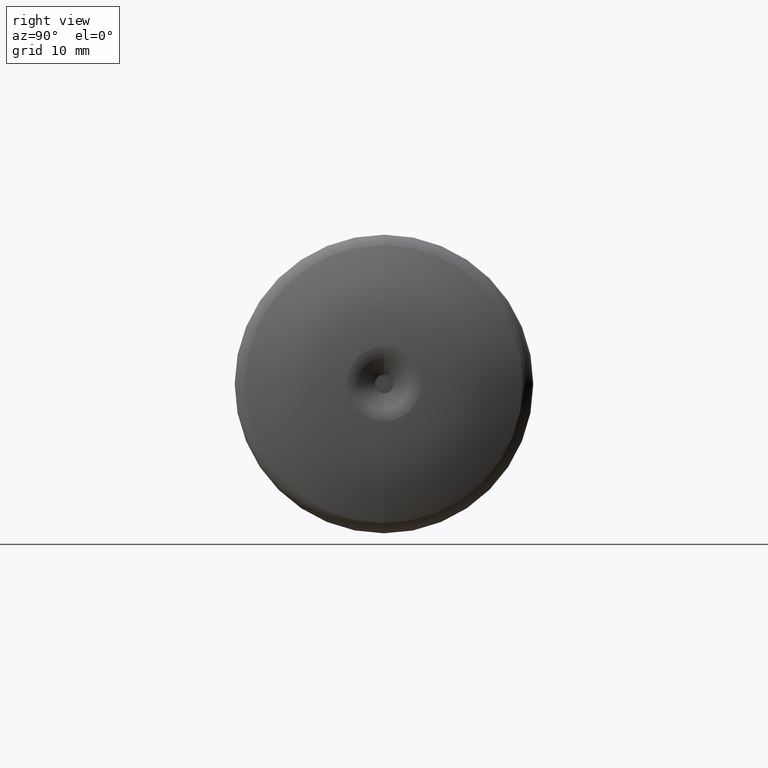
[diagram: clean part render]
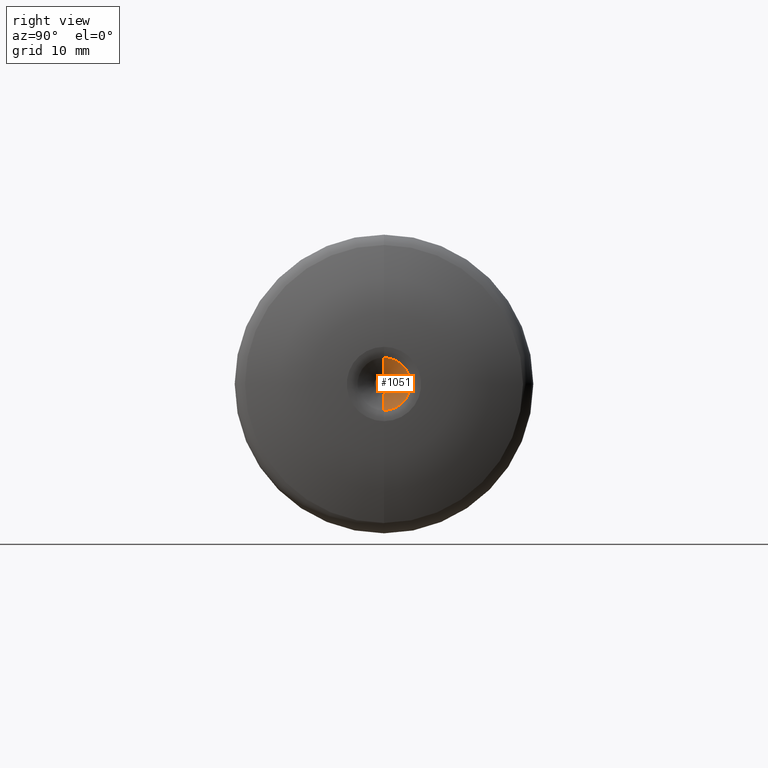
[diagram: same view with one face highlighted and labeled with its STEP entity id]
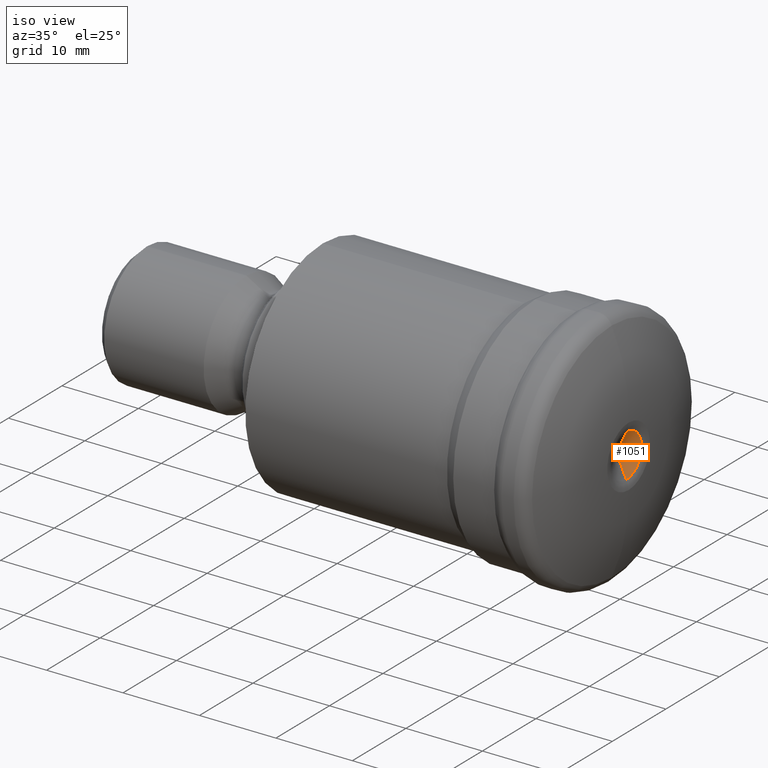
[diagram: same view with one face highlighted and labeled with its STEP entity id]
A machine part, right view. The second image highlights one B-rep face of the part: STEP entity #1051.
A second angle (iso view) of the same face is appended — the face is thin or edge-on in the first view.
In plain terms, the highlighted conical surface has half-angle 65.202 deg.
Its self-contained STEP definition (entity closure, byte-faithful):
#71 = DIRECTION ( 'NONE',  ( 0.0000000000000000000, 0.0000000000000000000, -1.000000000000000000 ) ) ;
#125 = DIRECTION ( 'NONE',  ( 1.000000000000000000, -0.0000000000000000000, -0.0000000000000000000 ) ) ;
#140 = CARTESIAN_POINT ( 'NONE',  ( -7.985904054406477900E-016, 0.0000000000000000000, 0.0000000000000000000 ) ) ;
#307 = VECTOR ( 'NONE', #741, 1000.000000000000000 ) ;
#331 = VECTOR ( 'NONE', #671, 1000.000000000000000 ) ;
#336 = LINE ( 'NONE', #734, #307 ) ;
#342 = LINE ( 'NONE', #927, #331 ) ;
#350 = ORIENTED_EDGE ( 'NONE', *, *, #421, .T. ) ;
#354 = CIRCLE ( 'NONE', #485, 0.9980557212225268400 ) ;
#364 = ORIENTED_EDGE ( 'NONE', *, *, #497, .F. ) ;
#383 = CIRCLE ( 'NONE', #456, 2.826783644686047000 ) ;
#388 = ORIENTED_EDGE ( 'NONE', *, *, #480, .T. ) ;
#392 = ORIENTED_EDGE ( 'NONE', *, *, #408, .F. ) ;
#408 = EDGE_CURVE ( 'NONE', #849, #848, #354, .T. ) ;
#421 = EDGE_CURVE ( 'NONE', #876, #743, #383, .T. ) ;
#456 = AXIS2_PLACEMENT_3D ( 'NONE', #968, #712, #713 ) ;
#480 = EDGE_CURVE ( 'NONE', #849, #876, #336, .T. ) ;
#485 = AXIS2_PLACEMENT_3D ( 'NONE', #692, #686, #685 ) ;
#486 = AXIS2_PLACEMENT_3D ( 'NONE', #140, #125, #71 ) ;
#497 = EDGE_CURVE ( 'NONE', #848, #743, #342, .T. ) ;
#613 = EDGE_LOOP ( 'NONE', ( #364, #392, #388, #350 ) ) ;
#671 = DIRECTION ( 'NONE',  ( 0.4194177533736165300, 1.111726208122785700E-016, 0.9077933400036751800 ) ) ;
#685 = DIRECTION ( 'NONE',  ( 0.0000000000000000000, 0.0000000000000000000, -1.000000000000000000 ) ) ;
#686 = DIRECTION ( 'NONE',  ( 1.000000000000000000, -0.0000000000000000000, -0.0000000000000000000 ) ) ;
#692 = CARTESIAN_POINT ( 'NONE',  ( -7.985904054406477900E-016, 0.0000000000000000000, 0.0000000000000000000 ) ) ;
#712 = DIRECTION ( 'NONE',  ( 1.000000000000000000, -0.0000000000000000000, -0.0000000000000000000 ) ) ;
#713 = DIRECTION ( 'NONE',  ( 0.0000000000000000000, 0.0000000000000000000, -1.000000000000000000 ) ) ;
#734 = CARTESIAN_POINT ( 'NONE',  ( -7.985904054406477900E-016, 0.0000000000000000000, -0.9980557212225268400 ) ) ;
#741 = DIRECTION ( 'NONE',  ( 0.4194177533736165300, 0.0000000000000000000, -0.9077933400036751800 ) ) ;
#743 = VERTEX_POINT ( 'NONE', #992 ) ;
#814 = CARTESIAN_POINT ( 'NONE',  ( 0.8449070106502024600, 0.0000000000000000000, -2.826783644686047000 ) ) ;
#848 = VERTEX_POINT ( 'NONE', #953 ) ;
#849 = VERTEX_POINT ( 'NONE', #901 ) ;
#876 = VERTEX_POINT ( 'NONE', #814 ) ;
#901 = CARTESIAN_POINT ( 'NONE',  ( -7.985904054406477900E-016, 0.0000000000000000000, -0.9980557212225268400 ) ) ;
#927 = CARTESIAN_POINT ( 'NONE',  ( -7.985904054406477900E-016, 1.222265744365870500E-016, 0.9980557212225268400 ) ) ;
#953 = CARTESIAN_POINT ( 'NONE',  ( -7.985904054406477900E-016, 2.342038643356363200E-016, 0.9980557212225268400 ) ) ;
#968 = CARTESIAN_POINT ( 'NONE',  ( 0.8449070106502024600, 0.0000000000000000000, 0.0000000000000000000 ) ) ;
#992 = CARTESIAN_POINT ( 'NONE',  ( 0.8449070106502024600, 4.173338881536408900E-016, 2.826783644686047000 ) ) ;
#1051 = ADVANCED_FACE ( 'NONE', ( #1125 ), #1137, .F. ) ;
#1125 = FACE_OUTER_BOUND ( 'NONE', #613, .T. ) ;
#1137 = CONICAL_SURFACE ( 'NONE', #486, 0.9980557212225268400, 1.137992488586185000 ) ;